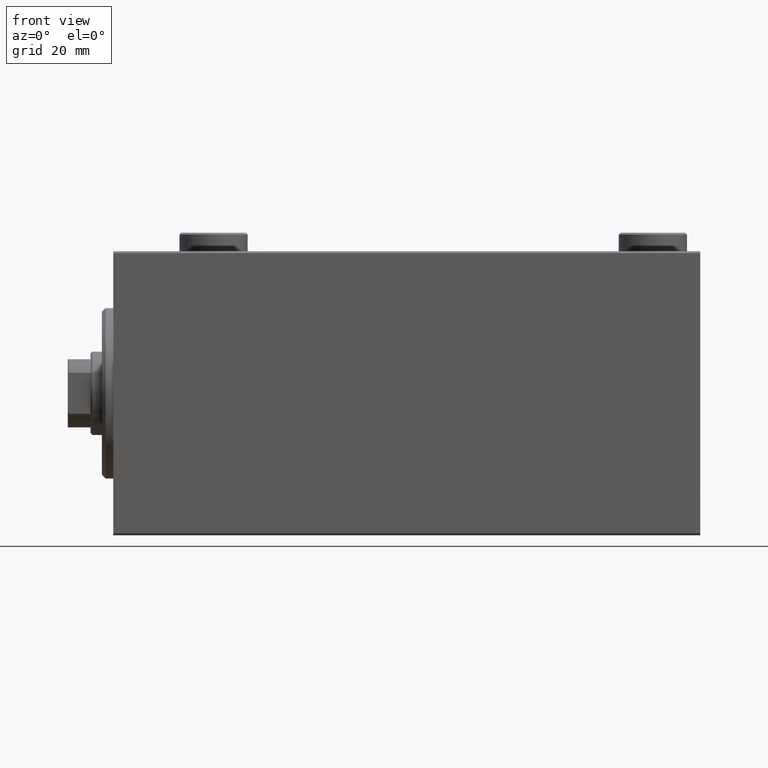
[diagram: clean part render]
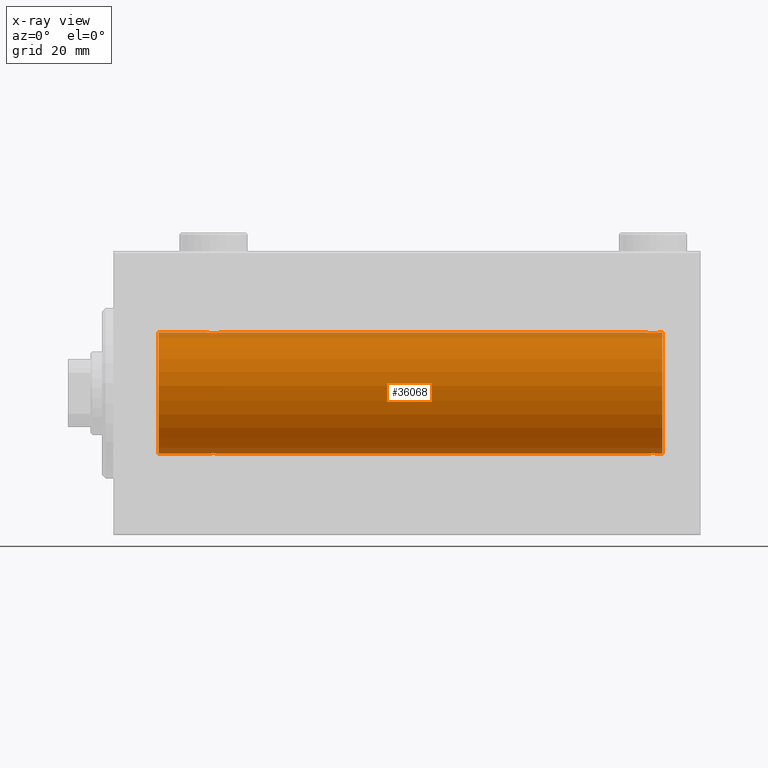
[diagram: x-ray — body ghosted, one internal face saturated and labeled with its STEP entity id]
A machine part, front view, then the same camera in x-ray: the body is ghosted and one INTERNAL B-rep face — a face not visible from any outside direction — is saturated and labeled: STEP entity #36068.
In plain terms, the highlighted cylindrical surface (partial cylindrical patch) has radius 16 mm, axis along (-1, -0, -0).
Its self-contained STEP definition (entity closure, byte-faithful):
#387 = CARTESIAN_POINT ( 'NONE',  ( 27.14636362870458086, -1.897207606501646104, -15.88720136683947537 ) ) ;
#1005 = EDGE_CURVE ( 'NONE', #26908, #25158, #34559, .T. ) ;
#1253 = CARTESIAN_POINT ( 'NONE',  ( 142.7637046287816815, -1.986819684797432206, -15.87618369521983119 ) ) ;
#1476 = CARTESIAN_POINT ( 'NONE',  ( 141.1789566519659331, -1.507256214862807253, -15.92911555180481464 ) ) ;
#1607 = DIRECTION ( 'NONE',  ( -1.000000000000000000, -0.000000000000000000, -0.000000000000000000 ) ) ;
#1629 = CARTESIAN_POINT ( 'NONE',  ( 142.2362953712182048, -1.986819684797424435, 15.87618369521983830 ) ) ;
#1943 = CARTESIAN_POINT ( 'NONE',  ( 140.5000000000000000, -0.2645044045393569743, -16.00000000000000711 ) ) ;
#2082 = CARTESIAN_POINT ( 'NONE',  ( 141.4967921520867549, -1.735114343256362490, 15.90580722143557502 ) ) ;
#2190 = CARTESIAN_POINT ( 'NONE',  ( 24.75183372993787856, -1.005876079953904600, 15.97016854943970543 ) ) ;
#2299 = CARTESIAN_POINT ( 'NONE',  ( 142.6308040857657033, -2.000094120337579717, 15.87449600834271379 ) ) ;
#2924 = CARTESIAN_POINT ( 'NONE',  ( 25.49921634246596014, -1.736521253711144963, -15.90565326803671375 ) ) ;
#3109 = ORIENTED_EDGE ( 'NONE', *, *, #21844, .T. ) ;
#3151 = CARTESIAN_POINT ( 'NONE',  ( 24.75321871145306218, -1.008257970366813749, -15.97001510549667458 ) ) ;
#3156 = ORIENTED_EDGE ( 'NONE', *, *, #1005, .T. ) ;
#3224 = B_SPLINE_CURVE_WITH_KNOTS ( 'NONE', 3,
 ( #44473, #9422, #33652, #37343, #16345, #8521, #15660, #2082, #5752, #19802, #20033, #1629, #33871, #2299, #37561, #36648, #16581, #16117, #30187, #12890, #41020, #23499, #34106, #15897, #44702, #8745 ),
 .UNSPECIFIED., .F., .F.,
 ( 4, 2, 2, 2, 2, 2, 2, 2, 2, 2, 2, 2, 4 ),
 ( 0.006259031236593856455, 0.007041222816026924611, 0.007823414395459991899, 0.008214510185176526411, 0.008605605974893060922, 0.008996701764609595434, 0.009387797554326129945, 0.009778893344042662722, 0.01016998913375919723, 0.01056108492347573174, 0.01095218071319226452, 0.01173437229262533181, 0.01251656387205839910 ),
 .UNSPECIFIED. ) ;
#3660 = EDGE_CURVE ( 'NONE', #14245, #31886, #13947, .T. ) ;
#3723 = ORIENTED_EDGE ( 'NONE', *, *, #3660, .T. ) ;
#4319 = CARTESIAN_POINT ( 'NONE',  ( 145.0000000000000000, 1.959434878635765131E-15, -16.00000000000000000 ) ) ;
#4339 = CIRCLE ( 'NONE', #40448, 16.00000000000000000 ) ;
#4685 = VECTOR ( 'NONE', #17859, 1000.000000000000000 ) ;
#5151 = CARTESIAN_POINT ( 'NONE',  ( 140.9023686404279658, -1.231048876942826276, -15.95364199493483426 ) ) ;
#5389 = CARTESIAN_POINT ( 'NONE',  ( 143.7202803347840643, -1.589957129871035768, -15.92097237843274549 ) ) ;
#5752 = CARTESIAN_POINT ( 'NONE',  ( 141.6115385917071592, -1.796613193944146980, 15.89889131367403330 ) ) ;
#5863 = CARTESIAN_POINT ( 'NONE',  ( 25.17695155286792286, -1.505501573616977673, 15.92928245046054947 ) ) ;
#6091 = ORIENTED_EDGE ( 'NONE', *, *, #19249, .T. ) ;
#6170 = CARTESIAN_POINT ( 'NONE',  ( 144.4999999999999716, 1.959434851248285101E-15, -16.00000000000000000 ) ) ;
#6603 = CARTESIAN_POINT ( 'NONE',  ( 25.98335998918949841, -1.936513707523809469, -15.88239801746204805 ) ) ;
#7864 = CARTESIAN_POINT ( 'NONE',  ( 145.0000000000000000, 1.959434878635765131E-15, -16.00000000000000000 ) ) ;
#8521 = CARTESIAN_POINT ( 'NONE',  ( 141.1769515528679051, -1.505501573616961686, 15.92928245046055302 ) ) ;
#8745 = CARTESIAN_POINT ( 'NONE',  ( 144.4999999999999716, -5.805030688536432137E-15, 16.00000000000000000 ) ) ;
#8820 = ORIENTED_EDGE ( 'NONE', *, *, #35911, .T. ) ;
#9422 = CARTESIAN_POINT ( 'NONE',  ( 140.4999999999999432, -0.2611263091397192926, 16.00000000000000000 ) ) ;
#9532 = CARTESIAN_POINT ( 'NONE',  ( 24.90061418674620342, -1.228793614424124714, 15.95381972293797368 ) ) ;
#9764 = EDGE_CURVE ( 'NONE', #25158, #29713, #4339, .T. ) ;
#9771 = CARTESIAN_POINT ( 'NONE',  ( 24.50000000000000000, -2.739635037742051899E-23, 16.00000000000000000 ) ) ;
#9835 = CARTESIAN_POINT ( 'NONE',  ( 28.49999999999999645, 1.959434851239213200E-15, -16.00000000000000000 ) ) ;
#10282 = CARTESIAN_POINT ( 'NONE',  ( 27.82304844713206293, -1.505501573616970568, -15.92928245046054947 ) ) ;
#10483 = CARTESIAN_POINT ( 'NONE',  ( 140.4999999999999716, -2.738767290746308786E-23, 16.00000000000000000 ) ) ;
#12292 = CARTESIAN_POINT ( 'NONE',  ( 141.9833599891895233, -1.936513707523831229, -15.88239801746205160 ) ) ;
#12514 = CARTESIAN_POINT ( 'NONE',  ( 142.3691959142342114, -2.000094120337587267, -15.87449600834269958 ) ) ;
#12736 = CARTESIAN_POINT ( 'NONE',  ( 141.6140785003149745, -1.797863738508703513, -15.89874935709250536 ) ) ;
#12766 = CARTESIAN_POINT ( 'NONE',  ( 27.01664001081050515, -1.936513707523814354, 15.88239801746204805 ) ) ;
#12890 = CARTESIAN_POINT ( 'NONE',  ( 143.7182187284028316, -1.591545514129670824, 15.92081325887754595 ) ) ;
#12997 = CARTESIAN_POINT ( 'NONE',  ( 28.49999999999999289, -0.2645044045393371013, 16.00000000000000000 ) ) ;
#13319 = CARTESIAN_POINT ( 'NONE',  ( 12.00000000000001066, 0.000000000000000000, 0.000000000000000000 ) ) ;
#13451 = CARTESIAN_POINT ( 'NONE',  ( 25.49679215208682592, -1.735114343256370262, 15.90580722143557502 ) ) ;
#13947 = B_SPLINE_CURVE_WITH_KNOTS ( 'NONE', 3,
 ( #16196, #37199, #22898, #40200, #36963, #33046, #5389, #19440, #39965, #44320, #18979, #1253, #43880, #12514, #40419, #12292, #26370, #12736, #37419, #33512, #1476, #5151, #15281, #23357, #1943, #25910 ),
 .UNSPECIFIED., .F., .F.,
 ( 4, 2, 2, 2, 2, 2, 2, 2, 2, 2, 2, 2, 4 ),
 ( 0.006259031236593849516, 0.007041222816026933284, 0.007823414395460016185, 0.008214510185176557636, 0.008605605974893099086, 0.008996701764609640536, 0.009387797554326181987, 0.009778893344042723437, 0.01016998913375926489, 0.01056108492347580460, 0.01095218071319234605, 0.01173437229262536824, 0.01251656387205839216 ),
 .UNSPECIFIED. ) ;
#13968 = CARTESIAN_POINT ( 'NONE',  ( 24.50000000000000000, -2.931586893697621157E-15, -16.00000000000000000 ) ) ;
#14245 = VERTEX_POINT ( 'NONE', #6170 ) ;
#14484 = VERTEX_POINT ( 'NONE', #22276 ) ;
#14721 = LINE ( 'NONE', #18881, #39174 ) ;
#14789 = VERTEX_POINT ( 'NONE', #29359 ) ;
#15281 = CARTESIAN_POINT ( 'NONE',  ( 140.7532187114530302, -1.008257970366831069, -15.97001510549667103 ) ) ;
#15660 = CARTESIAN_POINT ( 'NONE',  ( 141.2797196652158220, -1.589957129871026664, 15.92097237843274193 ) ) ;
#15897 = CARTESIAN_POINT ( 'NONE',  ( 144.4467400469563927, -0.5272875822566903681, 15.99312147175147381 ) ) ;
#16017 = DIRECTION ( 'NONE',  ( 0.000000000000000000, 0.000000000000000000, 1.000000000000000000 ) ) ;
#16072 = EDGE_LOOP ( 'NONE', ( #40516, #3109, #3723, #6091, #8820, #3156, #39913, #23606, #29579, #16874, #30211, #29111 ) ) ;
#16117 = CARTESIAN_POINT ( 'NONE',  ( 143.3859214996849971, -1.797863738508695963, 15.89874935709251247 ) ) ;
#16196 = CARTESIAN_POINT ( 'NONE',  ( 144.4999999999999716, 1.959434851248285101E-15, -16.00000000000000000 ) ) ;
#16224 = CARTESIAN_POINT ( 'NONE',  ( 25.98062885452072734, -1.935780515549995862, 15.88248768234623221 ) ) ;
#16272 = VECTOR ( 'NONE', #30165, 1000.000000000000000 ) ;
#16345 = CARTESIAN_POINT ( 'NONE',  ( 140.9006141867461679, -1.228793614424107172, 15.95381972293797013 ) ) ;
#16457 = CARTESIAN_POINT ( 'NONE',  ( 25.27971966521589664, -1.589957129871035768, 15.92097237843274549 ) ) ;
#16581 = CARTESIAN_POINT ( 'NONE',  ( 143.1437667071733415, -1.898087287925298128, 15.88709570026284723 ) ) ;
#16788 = CARTESIAN_POINT ( 'NONE',  ( 12.00000000000001066, 1.959434878635765131E-15, -16.00000000000000000 ) ) ;
#16874 = ORIENTED_EDGE ( 'NONE', *, *, #29219, .F. ) ;
#16971 = CARTESIAN_POINT ( 'NONE',  ( 27.50320784791317763, -1.735114343256362712, -15.90580722143557502 ) ) ;
#17053 = AXIS2_PLACEMENT_3D ( 'NONE', #37458, #37682, #16017 ) ;
#17204 = CARTESIAN_POINT ( 'NONE',  ( 26.63366663175618498, -1.999904855391105851, -15.87451985347842687 ) ) ;
#17436 = CARTESIAN_POINT ( 'NONE',  ( 25.17895665196594379, -1.507256214862784161, -15.92911555180481820 ) ) ;
#17859 = DIRECTION ( 'NONE',  ( -1.000000000000000000, -0.000000000000000000, -0.000000000000000000 ) ) ;
#17940 = CARTESIAN_POINT ( 'NONE',  ( 28.49999999999999645, 1.959434851239213200E-15, -16.00000000000000000 ) ) ;
#18250 = DIRECTION ( 'NONE',  ( -1.000000000000000000, -0.000000000000000000, -0.000000000000000000 ) ) ;
#18881 = CARTESIAN_POINT ( 'NONE',  ( 145.0000000000000000, 1.959434878635765131E-15, -16.00000000000000000 ) ) ;
#18979 = CARTESIAN_POINT ( 'NONE',  ( 143.0193711454792265, -1.935780515550005410, -15.88248768234623221 ) ) ;
#19249 = EDGE_CURVE ( 'NONE', #31886, #24142, #29083, .T. ) ;
#19373 = VERTEX_POINT ( 'NONE', #21357 ) ;
#19440 = CARTESIAN_POINT ( 'NONE',  ( 143.5032078479131314, -1.735114343256370484, -15.90580722143557857 ) ) ;
#19802 = CARTESIAN_POINT ( 'NONE',  ( 141.8536363712953801, -1.897207606501642996, 15.88720136683947537 ) ) ;
#19920 = CYLINDRICAL_SURFACE ( 'NONE', #17053, 16.00000000000000000 ) ;
#20033 = CARTESIAN_POINT ( 'NONE',  ( 141.9806288545206883, -1.935780515549996750, 15.88248768234623221 ) ) ;
#20259 = DIRECTION ( 'NONE',  ( -1.000000000000000000, 0.000000000000000000, 0.000000000000000000 ) ) ;
#20443 = CARTESIAN_POINT ( 'NONE',  ( 25.85623329282660166, -1.898087287925298794, -15.88709570026284545 ) ) ;
#20657 = CARTESIAN_POINT ( 'NONE',  ( 24.90236864042802267, -1.231048876942801407, -15.95364199493483426 ) ) ;
#20771 = VECTOR ( 'NONE', #18250, 1000.000000000000000 ) ;
#21357 = CARTESIAN_POINT ( 'NONE',  ( 24.50000000000000000, -2.739635037742051899E-23, 16.00000000000000000 ) ) ;
#21720 = LINE ( 'NONE', #22411, #20771 ) ;
#21844 = EDGE_CURVE ( 'NONE', #33685, #14245, #14721, .T. ) ;
#22276 = CARTESIAN_POINT ( 'NONE',  ( 28.49999999999999645, -1.207828523974853969E-15, 16.00000000000000000 ) ) ;
#22411 = CARTESIAN_POINT ( 'NONE',  ( 145.0000000000000000, 0.000000000000000000, 16.00000000000000000 ) ) ;
#22857 = EDGE_CURVE ( 'NONE', #33685, #37748, #34810, .T. ) ;
#22898 = CARTESIAN_POINT ( 'NONE',  ( 144.4475114103126145, -0.5244724041436306106, -15.99321727742820975 ) ) ;
#23357 = CARTESIAN_POINT ( 'NONE',  ( 140.5532599530436357, -0.5272875822567028026, -15.99312147175147381 ) ) ;
#23499 = CARTESIAN_POINT ( 'NONE',  ( 144.0976313595719205, -1.231048876942790749, 15.95364199493483959 ) ) ;
#23606 = ORIENTED_EDGE ( 'NONE', *, *, #45224, .F. ) ;
#23612 = CARTESIAN_POINT ( 'NONE',  ( 27.50078365753405407, -1.736521253711149182, 15.90565326803671375 ) ) ;
#23912 = CARTESIAN_POINT ( 'NONE',  ( 26.36919591423421139, -2.000094120337574388, -15.87449600834271024 ) ) ;
#23950 = DIRECTION ( 'NONE',  ( 0.000000000000000000, 0.000000000000000000, 1.000000000000000000 ) ) ;
#24071 = CARTESIAN_POINT ( 'NONE',  ( 27.71821872840285295, -1.591545514129674821, 15.92081325887754595 ) ) ;
#24142 = VERTEX_POINT ( 'NONE', #17940 ) ;
#24293 = CARTESIAN_POINT ( 'NONE',  ( 24.50000000000000355, -0.2611263091397209579, 16.00000000000000000 ) ) ;
#24593 = CARTESIAN_POINT ( 'NONE',  ( 27.01937114547927266, -1.935780515549990088, -15.88248768234623576 ) ) ;
#25158 = VERTEX_POINT ( 'NONE', #16788 ) ;
#25910 = CARTESIAN_POINT ( 'NONE',  ( 140.4999999999999716, -1.891165455471350260E-14, -16.00000000000000000 ) ) ;
#26370 = CARTESIAN_POINT ( 'NONE',  ( 141.8562332928265448, -1.898087287925306565, -15.88709570026284545 ) ) ;
#26379 = CARTESIAN_POINT ( 'NONE',  ( 145.0000000000000000, 0.000000000000000000, 16.00000000000000000 ) ) ;
#26801 = VECTOR ( 'NONE', #27643, 1000.000000000000000 ) ;
#26850 = CARTESIAN_POINT ( 'NONE',  ( 27.14376670717340545, -1.898087287925302125, 15.88709570026284545 ) ) ;
#26908 = VERTEX_POINT ( 'NONE', #31599 ) ;
#27068 = CARTESIAN_POINT ( 'NONE',  ( 145.0000000000000000, 0.000000000000000000, 0.000000000000000000 ) ) ;
#27190 = B_SPLINE_CURVE_WITH_KNOTS ( 'NONE', 3,
 ( #9835, #41875, #42333, #41652, #35409, #10282, #45562, #16971, #31950, #387, #24593, #41420, #17204, #23912, #34962, #6603, #20443, #31041, #2924, #38648, #17436, #20657, #3151, #31718, #31274, #13968 ),
 .UNSPECIFIED., .F., .F.,
 ( 4, 2, 2, 2, 2, 2, 2, 2, 2, 2, 2, 2, 4 ),
 ( 0.006259031236593877272, 0.007041222816026943693, 0.007823414395460009246, 0.008214510185176542023, 0.008605605974893074800, 0.008996701764609607577, 0.009387797554326140353, 0.009778893344042673130, 0.01016998913375920591, 0.01056108492347573868, 0.01095218071319227146, 0.01173437229262534222, 0.01251656387205841471 ),
 .UNSPECIFIED. ) ;
#27292 = CARTESIAN_POINT ( 'NONE',  ( 27.38592149968496514, -1.797863738508701736, 15.89874935709250892 ) ) ;
#27643 = DIRECTION ( 'NONE',  ( -1.000000000000000000, -0.000000000000000000, -0.000000000000000000 ) ) ;
#27748 = CARTESIAN_POINT ( 'NONE',  ( 26.63080408576578861, -2.000094120337581050, 15.87449600834271735 ) ) ;
#27975 = LINE ( 'NONE', #41362, #40860 ) ;
#29083 = LINE ( 'NONE', #7864, #16272 ) ;
#29111 = ORIENTED_EDGE ( 'NONE', *, *, #41261, .F. ) ;
#29219 = EDGE_CURVE ( 'NONE', #32918, #14484, #27975, .T. ) ;
#29359 = CARTESIAN_POINT ( 'NONE',  ( 144.4999999999999716, -5.805030688536432137E-15, 16.00000000000000000 ) ) ;
#29579 = ORIENTED_EDGE ( 'NONE', *, *, #39605, .T. ) ;
#29713 = VERTEX_POINT ( 'NONE', #37669 ) ;
#30165 = DIRECTION ( 'NONE',  ( -1.000000000000000000, -0.000000000000000000, -0.000000000000000000 ) ) ;
#30187 = CARTESIAN_POINT ( 'NONE',  ( 143.5007836575340718, -1.736521253711146517, 15.90565326803671731 ) ) ;
#30211 = ORIENTED_EDGE ( 'NONE', *, *, #30352, .T. ) ;
#30298 = CARTESIAN_POINT ( 'NONE',  ( 26.36633336824380436, -1.999904855391111402, 15.87451985347842687 ) ) ;
#30352 = EDGE_CURVE ( 'NONE', #32918, #14789, #3224, .T. ) ;
#30531 = CARTESIAN_POINT ( 'NONE',  ( 25.61153859170720537, -1.796613193944160969, 15.89889131367403685 ) ) ;
#30655 = CARTESIAN_POINT ( 'NONE',  ( 145.0000000000000000, 1.959434878635765131E-15, -16.00000000000000000 ) ) ;
#30973 = CARTESIAN_POINT ( 'NONE',  ( 25.85363637129542624, -1.897207606501653432, 15.88720136683947182 ) ) ;
#31041 = CARTESIAN_POINT ( 'NONE',  ( 25.61407850031505617, -1.797863738508699294, -15.89874935709251247 ) ) ;
#31274 = CARTESIAN_POINT ( 'NONE',  ( 24.50000000000000711, -0.2645044045393414311, -16.00000000000000355 ) ) ;
#31599 = CARTESIAN_POINT ( 'NONE',  ( 24.50000000000000000, -2.931586893697621157E-15, -16.00000000000000000 ) ) ;
#31718 = CARTESIAN_POINT ( 'NONE',  ( 24.55325995304361086, -0.5272875822566835957, -15.99312147175147736 ) ) ;
#31835 = AXIS2_PLACEMENT_3D ( 'NONE', #27068, #37903, #37443 ) ;
#31886 = VERTEX_POINT ( 'NONE', #35580 ) ;
#31950 = CARTESIAN_POINT ( 'NONE',  ( 27.38846140829280529, -1.796613193944152753, -15.89889131367403330 ) ) ;
#32918 = VERTEX_POINT ( 'NONE', #10483 ) ;
#33046 = CARTESIAN_POINT ( 'NONE',  ( 143.8230484471320096, -1.505501573616968125, -15.92928245046054947 ) ) ;
#33512 = CARTESIAN_POINT ( 'NONE',  ( 141.2817812715971399, -1.591545514129684369, -15.92081325887754595 ) ) ;
#33652 = CARTESIAN_POINT ( 'NONE',  ( 140.5524885896872718, -0.5244724041436295003, 15.99321727742820975 ) ) ;
#33685 = VERTEX_POINT ( 'NONE', #4319 ) ;
#33871 = CARTESIAN_POINT ( 'NONE',  ( 142.3663333682437724, -1.999904855391108072, 15.87451985347842687 ) ) ;
#33984 = CARTESIAN_POINT ( 'NONE',  ( 24.55248858968731085, -0.5244724041436337192, 15.99321727742820975 ) ) ;
#34106 = CARTESIAN_POINT ( 'NONE',  ( 144.2467812885468561, -1.008257970366816636, 15.97001510549667103 ) ) ;
#34221 = CARTESIAN_POINT ( 'NONE',  ( 27.82104334803405266, -1.507256214862787713, 15.92911555180482530 ) ) ;
#34559 = LINE ( 'NONE', #30655, #26801 ) ;
#34810 = CIRCLE ( 'NONE', #31835, 16.00000000000000000 ) ;
#34962 = CARTESIAN_POINT ( 'NONE',  ( 26.23917179650637266, -1.987201773464430055, -15.87613558886576470 ) ) ;
#35383 = CARTESIAN_POINT ( 'NONE',  ( 145.0000000000000000, 0.000000000000000000, 16.00000000000000000 ) ) ;
#35409 = CARTESIAN_POINT ( 'NONE',  ( 28.09938581325380724, -1.228793614424118497, -15.95381972293796835 ) ) ;
#35580 = CARTESIAN_POINT ( 'NONE',  ( 140.4999999999999716, -1.891165455471350260E-14, -16.00000000000000000 ) ) ;
#35612 = LINE ( 'NONE', #35383, #4685 ) ;
#35911 = EDGE_CURVE ( 'NONE', #24142, #26908, #27190, .T. ) ;
#36068 = ADVANCED_FACE ( 'NONE', ( #43686 ), #19920, .F. ) ;
#36648 = CARTESIAN_POINT ( 'NONE',  ( 143.0166400108104767, -1.936513707523814354, 15.88239801746205160 ) ) ;
#36963 = CARTESIAN_POINT ( 'NONE',  ( 144.0993858132537753, -1.228793614424114500, -15.95381972293796835 ) ) ;
#37199 = CARTESIAN_POINT ( 'NONE',  ( 144.4999999999999716, -0.2611263091397180713, -16.00000000000000000 ) ) ;
#37343 = CARTESIAN_POINT ( 'NONE',  ( 140.7518337299378004, -1.005876079953900604, 15.97016854943970188 ) ) ;
#37419 = CARTESIAN_POINT ( 'NONE',  ( 141.4992163424659282, -1.736521253711157398, -15.90565326803670665 ) ) ;
#37443 = DIRECTION ( 'NONE',  ( 0.000000000000000000, 0.000000000000000000, 1.000000000000000000 ) ) ;
#37458 = CARTESIAN_POINT ( 'NONE',  ( 145.0000000000000000, 0.000000000000000000, 0.000000000000000000 ) ) ;
#37561 = CARTESIAN_POINT ( 'NONE',  ( 142.7608282034935883, -1.987201773464434051, 15.87613558886576115 ) ) ;
#37669 = CARTESIAN_POINT ( 'NONE',  ( 12.00000000000001066, 0.000000000000000000, 16.00000000000000000 ) ) ;
#37682 = DIRECTION ( 'NONE',  ( -1.000000000000000000, -0.000000000000000000, -0.000000000000000000 ) ) ;
#37748 = VERTEX_POINT ( 'NONE', #26379 ) ;
#37903 = DIRECTION ( 'NONE',  ( -1.000000000000000000, 0.000000000000000000, 0.000000000000000000 ) ) ;
#37907 = CARTESIAN_POINT ( 'NONE',  ( 26.76082820349364866, -1.987201773464435828, 15.87613558886576470 ) ) ;
#38126 = CARTESIAN_POINT ( 'NONE',  ( 28.49999999999999645, -1.207828523974853969E-15, 16.00000000000000000 ) ) ;
#38434 = B_SPLINE_CURVE_WITH_KNOTS ( 'NONE', 3,
 ( #9771, #24293, #33984, #2190, #9532, #5863, #16457, #13451, #30531, #30973, #16224, #44351, #30298, #27748, #37907, #12766, #26850, #27292, #23612, #24071, #34221, #45039, #44585, #40904, #12997, #38126 ),
 .UNSPECIFIED., .F., .F.,
 ( 4, 2, 2, 2, 2, 2, 2, 2, 2, 2, 2, 2, 4 ),
 ( 0.006259031236593858190, 0.007041222816026928080, 0.007823414395459998838, 0.008214510185176533349, 0.008605605974893067861, 0.008996701764609604107, 0.009387797554326138619, 0.009778893344042673130, 0.01016998913375920938, 0.01056108492347574389, 0.01095218071319227840, 0.01173437229262534048, 0.01251656387205840430 ),
 .UNSPECIFIED. ) ;
#38648 = CARTESIAN_POINT ( 'NONE',  ( 25.28178127159713995, -1.591545514129671046, -15.92081325887754417 ) ) ;
#39174 = VECTOR ( 'NONE', #1607, 1000.000000000000000 ) ;
#39605 = EDGE_CURVE ( 'NONE', #19373, #14484, #38434, .T. ) ;
#39913 = ORIENTED_EDGE ( 'NONE', *, *, #9764, .T. ) ;
#39965 = CARTESIAN_POINT ( 'NONE',  ( 143.3884614082927840, -1.796613193944155640, -15.89889131367403330 ) ) ;
#40200 = CARTESIAN_POINT ( 'NONE',  ( 144.2481662700620859, -1.005876079953902158, -15.97016854943969832 ) ) ;
#40419 = CARTESIAN_POINT ( 'NONE',  ( 142.2391717965063833, -1.987201773464446264, -15.87613558886576115 ) ) ;
#40448 = AXIS2_PLACEMENT_3D ( 'NONE', #13319, #20259, #23950 ) ;
#40516 = ORIENTED_EDGE ( 'NONE', *, *, #22857, .F. ) ;
#40860 = VECTOR ( 'NONE', #42036, 1000.000000000000000 ) ;
#40904 = CARTESIAN_POINT ( 'NONE',  ( 28.44674004695639624, -0.5272875822566815973, 15.99312147175146670 ) ) ;
#41020 = CARTESIAN_POINT ( 'NONE',  ( 143.8210433480340669, -1.507256214862776167, 15.92911555180481820 ) ) ;
#41261 = EDGE_CURVE ( 'NONE', #37748, #14789, #21720, .T. ) ;
#41362 = CARTESIAN_POINT ( 'NONE',  ( 145.0000000000000000, 0.000000000000000000, 16.00000000000000000 ) ) ;
#41420 = CARTESIAN_POINT ( 'NONE',  ( 26.76370462878175260, -1.986819684797417995, -15.87618369521984185 ) ) ;
#41652 = CARTESIAN_POINT ( 'NONE',  ( 28.24816627006211078, -1.005876079953899049, -15.97016854943970188 ) ) ;
#41875 = CARTESIAN_POINT ( 'NONE',  ( 28.50000000000000355, -0.2611263091397186265, -16.00000000000000355 ) ) ;
#42036 = DIRECTION ( 'NONE',  ( -1.000000000000000000, -0.000000000000000000, -0.000000000000000000 ) ) ;
#42333 = CARTESIAN_POINT ( 'NONE',  ( 28.44751141031268915, -0.5244724041436300555, -15.99321727742820620 ) ) ;
#43686 = FACE_OUTER_BOUND ( 'NONE', #16072, .T. ) ;
#43880 = CARTESIAN_POINT ( 'NONE',  ( 142.6336666317561139, -1.999904855391116731, -15.87451985347841976 ) ) ;
#44320 = CARTESIAN_POINT ( 'NONE',  ( 143.1463636287045631, -1.897207606501651211, -15.88720136683947537 ) ) ;
#44351 = CARTESIAN_POINT ( 'NONE',  ( 26.23629537121825095, -1.986819684797424435, 15.87618369521983475 ) ) ;
#44473 = CARTESIAN_POINT ( 'NONE',  ( 140.4999999999999716, -2.738767290746308786E-23, 16.00000000000000000 ) ) ;
#44585 = CARTESIAN_POINT ( 'NONE',  ( 28.24678128854693426, -1.008257970366811751, 15.97001510549667103 ) ) ;
#44702 = CARTESIAN_POINT ( 'NONE',  ( 144.5000000000000000, -0.2645044045393381005, 16.00000000000000711 ) ) ;
#45039 = CARTESIAN_POINT ( 'NONE',  ( 28.09763135957198799, -1.231048876942802961, 15.95364199493483781 ) ) ;
#45224 = EDGE_CURVE ( 'NONE', #19373, #29713, #35612, .T. ) ;
#45562 = CARTESIAN_POINT ( 'NONE',  ( 27.72028033478412112, -1.589957129871027330, -15.92097237843274904 ) ) ;